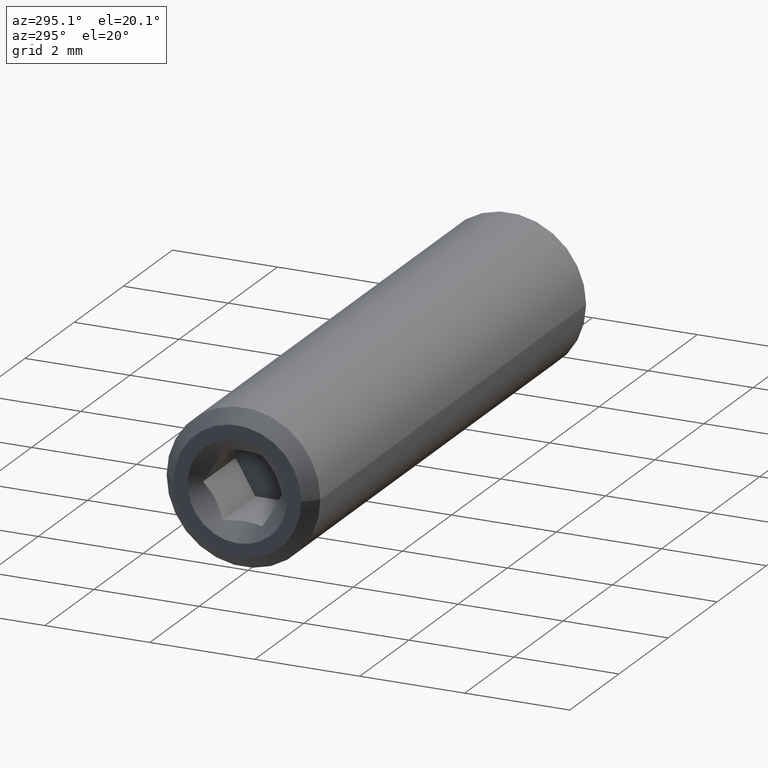
[diagram: clean part render]
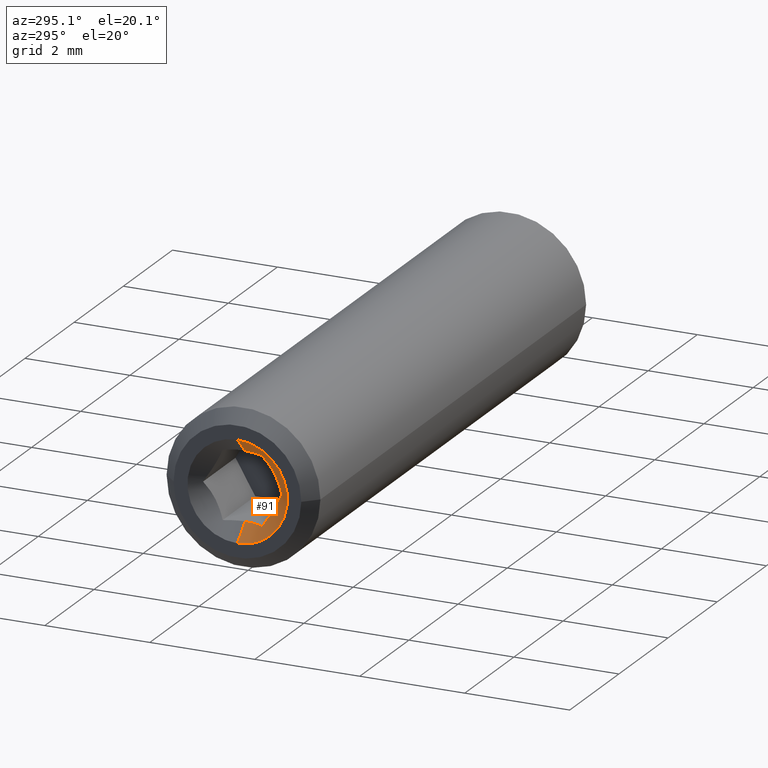
[diagram: same view with one face highlighted and labeled with its STEP entity id]
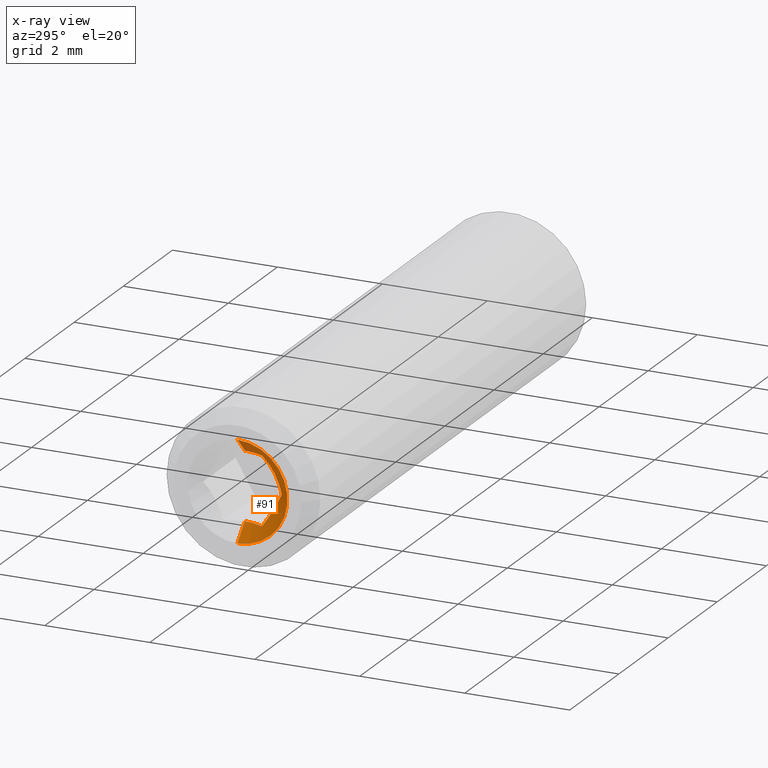
[diagram: x-ray of the same camera — body ghosted, the highlighted face saturated]
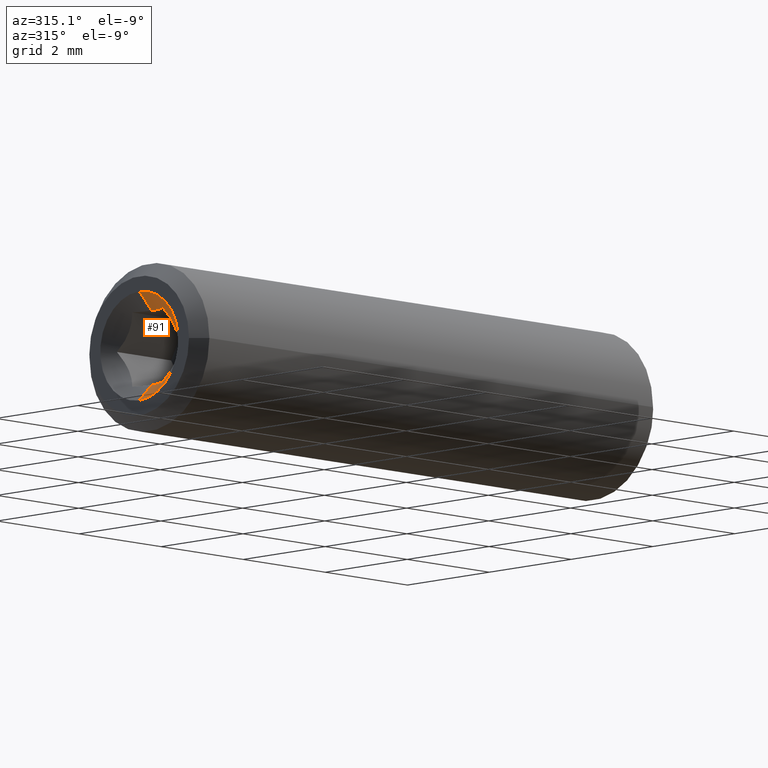
[diagram: same view with one face highlighted and labeled with its STEP entity id]
A machine part, auxiliary view. The second image highlights one B-rep face of the part: STEP entity #91.
The next image is the same camera in x-ray: the body ghosted, the highlighted face saturated — about 0% of this face is hidden behind the body in this view.
A second angle (auxiliary view) of the same face is appended — the face is thin or edge-on in the first view.
In plain terms, the highlighted conical surface has half-angle 45 deg.
Its self-contained STEP definition (entity closure, byte-faithful):
#85 = EDGE_CURVE ( 'NONE', #353, #277, #381, .T. ) ;
#86 = EDGE_CURVE ( 'NONE', #277, #283, #852, .T. ) ;
#87 = EDGE_CURVE ( 'NONE', #353, #355, #1118, .T. ) ;
#88 = EDGE_CURVE ( 'NONE', #275, #352, #1113, .T. ) ;
#89 = EDGE_CURVE ( 'NONE', #352, #362, #1117, .T. ) ;
#90 = EDGE_CURVE ( 'NONE', #275, #283, #382, .T. ) ;
#91 = ADVANCED_FACE ( 'NONE', ( #383 ), #835, .F. ) ;
#170 = EDGE_CURVE ( 'NONE', #355, #362, #189, .T. ) ;
#189 = B_SPLINE_CURVE_WITH_KNOTS ( 'NONE', 3,
 ( #555, #551, #561, #444, #443, #442, #397, #398 ),
 .UNSPECIFIED., .F., .F.,
 ( 4, 2, 2, 4 ),
 ( 2.544447900367086700E-007, 0.0001937523075417527500, 0.0003872501702934687900, 0.0007742458957969011900 ),
 .UNSPECIFIED. ) ;
#275 = VERTEX_POINT ( 'NONE', #933 ) ;
#277 = VERTEX_POINT ( 'NONE', #931 ) ;
#283 = VERTEX_POINT ( 'NONE', #920 ) ;
#300 = EDGE_LOOP ( 'NONE', ( #1086, #1073, #1110, #1069, #1108, #1107, #1071 ) ) ;
#352 = VERTEX_POINT ( 'NONE', #899 ) ;
#353 = VERTEX_POINT ( 'NONE', #887 ) ;
#355 = VERTEX_POINT ( 'NONE', #906 ) ;
#362 = VERTEX_POINT ( 'NONE', #905 ) ;
#381 = LINE ( 'NONE', #620, #808 ) ;
#382 = LINE ( 'NONE', #598, #836 ) ;
#383 = FACE_OUTER_BOUND ( 'NONE', #300, .T. ) ;
#397 = CARTESIAN_POINT ( 'NONE',  ( -1.035733554507513300, 0.3640672630118536600, 0.1583017071524174300 ) ) ;
#398 = CARTESIAN_POINT ( 'NONE',  ( -1.038052019764207800, 0.3617487977552137900, 0.1623174067725008100 ) ) ;
#442 = CARTESIAN_POINT ( 'NONE',  ( -1.034088861108277700, 0.3665757078634741000, 0.1539569532214260000 ) ) ;
#443 = CARTESIAN_POINT ( 'NONE',  ( -1.034105310065368100, 0.3704386376555203800, 0.1472661625555302700 ) ) ;
#444 = CARTESIAN_POINT ( 'NONE',  ( -1.034519691857084900, 0.3717267696628436300, 0.1450350524719906400 ) ) ;
#451 = CARTESIAN_POINT ( 'NONE',  ( -1.046052019764210000, 0.3912487977552124300, 0.1623174067724998400 ) ) ;
#453 = CARTESIAN_POINT ( 'NONE',  ( -1.046052019764210000, 0.3912487977552124300, 0.1623174067724998400 ) ) ;
#458 = DIRECTION ( 'NONE',  ( 0.0000000000000000000, 0.0000000000000000000, 1.000000000000000000 ) ) ;
#467 = CARTESIAN_POINT ( 'NONE',  ( -1.038052019764209800, 0.3764987977552142800, 0.1878651561841426800 ) ) ;
#476 = CARTESIAN_POINT ( 'NONE',  ( -1.034519691857086500, 0.3717267696628445100, 0.1795997610730122900 ) ) ;
#523 = CARTESIAN_POINT ( 'NONE',  ( -1.034099769175848200, 0.3860946961115318500, 0.1367696573608605800 ) ) ;
#551 = CARTESIAN_POINT ( 'NONE',  ( -1.036899601449205100, 0.3753463794402112600, 0.1387657044340170900 ) ) ;
#555 = CARTESIAN_POINT ( 'NONE',  ( -1.038052019764207400, 0.3764987977552133300, 0.1367696573608606100 ) ) ;
#559 = DIRECTION ( 'NONE',  ( -1.000000000000000000, 4.906129737190211900E-016, 0.0000000000000000000 ) ) ;
#560 = CARTESIAN_POINT ( 'NONE',  ( -1.038052019764207800, 0.3617487977552137900, 0.1623174067725008100 ) ) ;
#561 = CARTESIAN_POINT ( 'NONE',  ( -1.035919743309946700, 0.3741679564848866500, 0.1408067928654449800 ) ) ;
#570 = CARTESIAN_POINT ( 'NONE',  ( -1.035784619783361600, 0.3810335977169099200, 0.1878651561841423500 ) ) ;
#574 = CARTESIAN_POINT ( 'NONE',  ( -1.034105310065369400, 0.3704386376555212100, 0.1773686509894726600 ) ) ;
#576 = CARTESIAN_POINT ( 'NONE',  ( -1.038052019764209800, 0.3764987977552142800, 0.1878651561841426800 ) ) ;
#577 = DIRECTION ( 'NONE',  ( -0.7071067811865466800, 4.335113662783663200E-016, -0.7071067811865483500 ) ) ;
#590 = CARTESIAN_POINT ( 'NONE',  ( -1.034099769175848400, 0.3912487977552124300, 0.1367696573608605800 ) ) ;
#598 = CARTESIAN_POINT ( 'NONE',  ( -1.046052019764210000, 0.3912487977552124300, 0.1998174067725007300 ) ) ;
#601 = CARTESIAN_POINT ( 'NONE',  ( -1.038052019764207400, 0.3764987977552133300, 0.1367696573608606100 ) ) ;
#603 = CARTESIAN_POINT ( 'NONE',  ( -1.034099769175851100, 0.3912487977552124300, 0.1878651561841417100 ) ) ;
#608 = DIRECTION ( 'NONE',  ( 0.0000000000000000000, 0.0000000000000000000, 1.000000000000000000 ) ) ;
#614 = DIRECTION ( 'NONE',  ( -1.000000000000000000, 4.906129737190211900E-016, -0.0000000000000000000 ) ) ;
#620 = CARTESIAN_POINT ( 'NONE',  ( -1.046052019764210000, 0.3912487977552124300, 0.1248174067724989500 ) ) ;
#638 = CARTESIAN_POINT ( 'NONE',  ( -1.034088861108278100, 0.3665757078634746500, 0.1706778603235764000 ) ) ;
#658 = CARTESIAN_POINT ( 'NONE',  ( -1.035733554507513000, 0.3640672630118538800, 0.1663331063925845800 ) ) ;
#660 = CARTESIAN_POINT ( 'NONE',  ( -1.036899601449207300, 0.3753463794402120400, 0.1858691091109860300 ) ) ;
#665 = CARTESIAN_POINT ( 'NONE',  ( -1.035784619783734800, 0.3810335977161574700, 0.1367696573608605800 ) ) ;
#703 = CARTESIAN_POINT ( 'NONE',  ( -1.035919743309948700, 0.3741679564848876000, 0.1838280206795582500 ) ) ;
#726 = CARTESIAN_POINT ( 'NONE',  ( -1.034099769175851100, 0.3860946961107473700, 0.1878651561841420400 ) ) ;
#733 = DIRECTION ( 'NONE',  ( -0.7071067811865466800, 3.469157606548169200E-016, 0.7071067811865483500 ) ) ;
#808 = VECTOR ( 'NONE', #577, 39.37007874015748100 ) ;
#821 = AXIS2_PLACEMENT_3D ( 'NONE', #453, #559, #608 ) ;
#835 = CONICAL_SURFACE ( 'NONE', #854, 0.03750000000000090100, 0.7853981633974495000 ) ;
#836 = VECTOR ( 'NONE', #733, 39.37007874015748100 ) ;
#852 = CIRCLE ( 'NONE', #821, 0.03750000000000090100 ) ;
#854 = AXIS2_PLACEMENT_3D ( 'NONE', #451, #614, #458 ) ;
#887 = CARTESIAN_POINT ( 'NONE',  ( -1.034099769175848400, 0.3912487977552124300, 0.1367696573608605800 ) ) ;
#899 = CARTESIAN_POINT ( 'NONE',  ( -1.038052019764209800, 0.3764987977552142800, 0.1878651561841426800 ) ) ;
#905 = CARTESIAN_POINT ( 'NONE',  ( -1.038052019764207800, 0.3617487977552137900, 0.1623174067725008100 ) ) ;
#906 = CARTESIAN_POINT ( 'NONE',  ( -1.038052019764207400, 0.3764987977552133300, 0.1367696573608606100 ) ) ;
#920 = CARTESIAN_POINT ( 'NONE',  ( -1.046052019764210000, 0.3912487977552124300, 0.1998174067725007300 ) ) ;
#931 = CARTESIAN_POINT ( 'NONE',  ( -1.046052019764210000, 0.3912487977552124300, 0.1248174067724989500 ) ) ;
#933 = CARTESIAN_POINT ( 'NONE',  ( -1.034099769175851100, 0.3912487977552124300, 0.1878651561841417100 ) ) ;
#1069 = ORIENTED_EDGE ( 'NONE', *, *, #90, .F. ) ;
#1071 = ORIENTED_EDGE ( 'NONE', *, *, #170, .F. ) ;
#1073 = ORIENTED_EDGE ( 'NONE', *, *, #85, .T. ) ;
#1086 = ORIENTED_EDGE ( 'NONE', *, *, #87, .F. ) ;
#1107 = ORIENTED_EDGE ( 'NONE', *, *, #89, .T. ) ;
#1108 = ORIENTED_EDGE ( 'NONE', *, *, #88, .T. ) ;
#1110 = ORIENTED_EDGE ( 'NONE', *, *, #86, .T. ) ;
#1113 = B_SPLINE_CURVE_WITH_KNOTS ( 'NONE', 3,
 ( #603, #726, #570, #576 ),
 .UNSPECIFIED., .F., .F.,
 ( 4, 4 ),
 ( 0.002540931846848999100, 0.002929155449028784800 ),
 .UNSPECIFIED. ) ;
#1117 = B_SPLINE_CURVE_WITH_KNOTS ( 'NONE', 3,
 ( #467, #660, #703, #476, #574, #638, #658, #560 ),
 .UNSPECIFIED., .F., .F.,
 ( 4, 2, 2, 4 ),
 ( 2.544447900359894300E-007, 0.0001937523075417640500, 0.0003872501702934921500, 0.0007742458957969482400 ),
 .UNSPECIFIED. ) ;
#1118 = B_SPLINE_CURVE_WITH_KNOTS ( 'NONE', 3,
 ( #590, #523, #665, #601 ),
 .UNSPECIFIED., .F., .F.,
 ( 4, 4 ),
 ( 0.002540931851788680100, 0.002929155453966859000 ),
 .UNSPECIFIED. ) ;